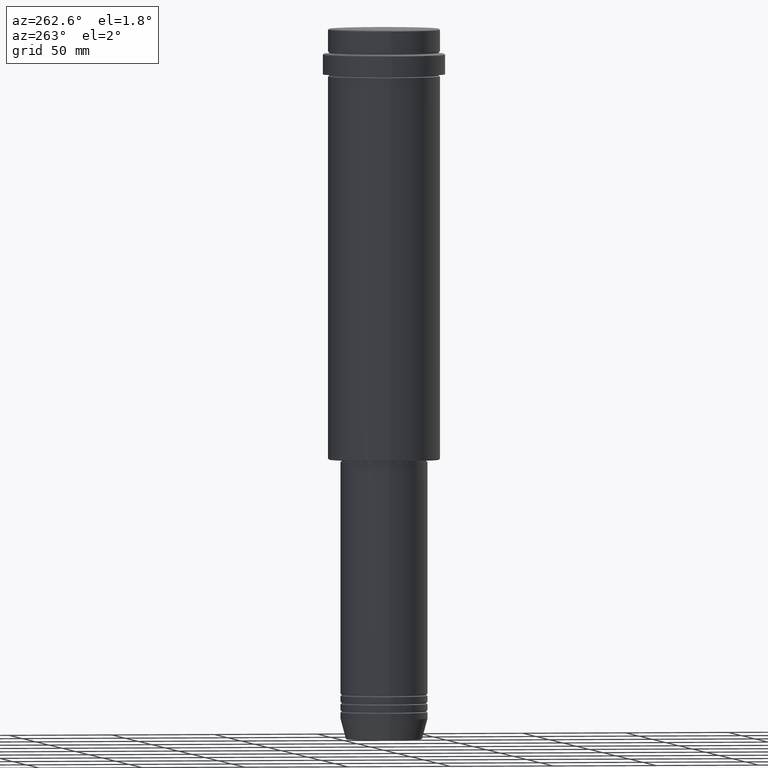
[diagram: clean part render]
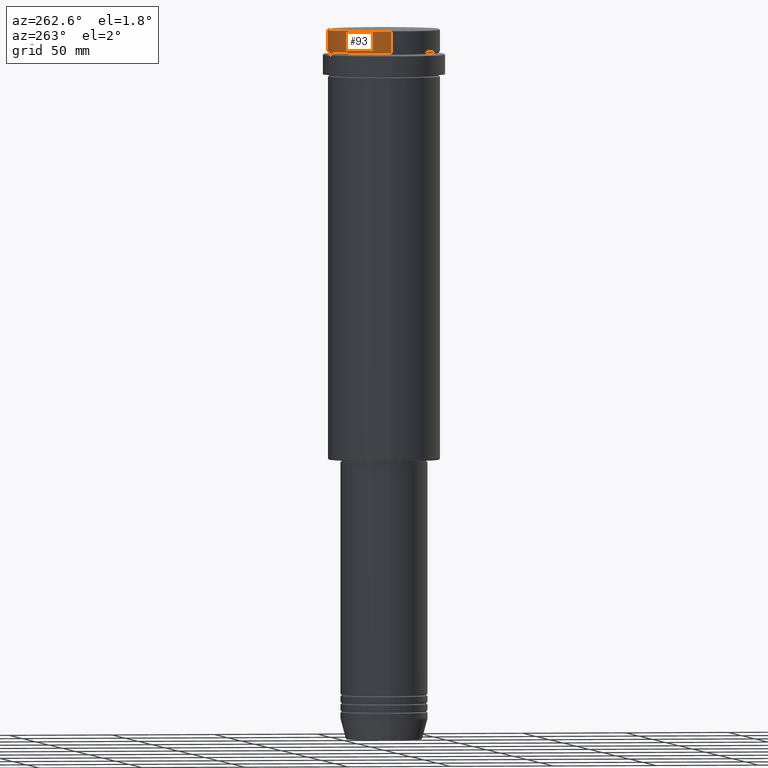
[diagram: same view with one face highlighted and labeled with its STEP entity id]
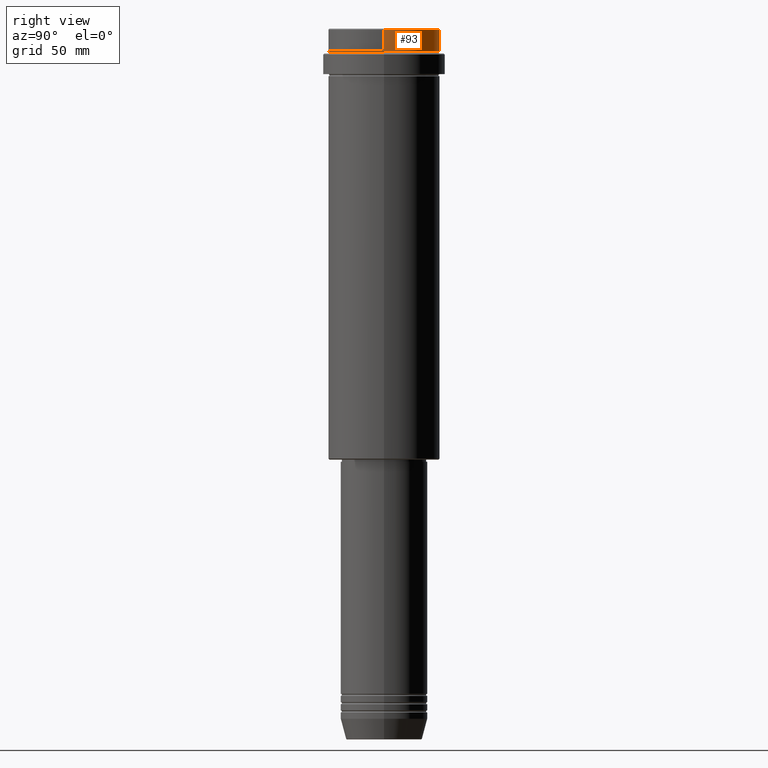
[diagram: same view with one face highlighted and labeled with its STEP entity id]
A machine part, auxiliary view. The second image highlights one B-rep face of the part: STEP entity #93.
A second angle (right view) of the same face is appended — the face is thin or edge-on in the first view.
In plain terms, the highlighted cylindrical surface (partial cylindrical patch) has radius 27 mm, axis along (-0, -0, 1).
Its self-contained STEP definition (entity closure, byte-faithful):
#8 = CARTESIAN_POINT ( 'NONE',  ( 27.00000000000000355, 0.000000000000000000, -0.4999999999999241163 ) ) ;
#28 = CARTESIAN_POINT ( 'NONE',  ( -27.00000000000000355, 3.306546357697854128E-15, -0.4999999999999241163 ) ) ;
#75 = DIRECTION ( 'NONE',  ( -0.000000000000000000, -0.000000000000000000, 1.000000000000000000 ) ) ;
#80 = CARTESIAN_POINT ( 'NONE',  ( 0.000000000000000000, 0.000000000000000000, 0.000000000000000000 ) ) ;
#90 = DIRECTION ( 'NONE',  ( 0.000000000000000000, 0.000000000000000000, -1.000000000000000000 ) ) ;
#93 = ADVANCED_FACE ( 'NONE', ( #409 ), #619, .T. ) ;
#95 = ORIENTED_EDGE ( 'NONE', *, *, #140, .T. ) ;
#102 = VERTEX_POINT ( 'NONE', #1374 ) ;
#112 = CARTESIAN_POINT ( 'NONE',  ( -27.00000000000000355, 3.306546357697854128E-15, 0.000000000000000000 ) ) ;
#119 = ORIENTED_EDGE ( 'NONE', *, *, #723, .T. ) ;
#125 = EDGE_CURVE ( 'NONE', #903, #1115, #895, .T. ) ;
#140 = EDGE_CURVE ( 'NONE', #102, #938, #1323, .T. ) ;
#251 = EDGE_CURVE ( 'NONE', #903, #102, #628, .T. ) ;
#322 = CARTESIAN_POINT ( 'NONE',  ( 0.000000000000000000, 0.000000000000000000, -11.00000000000000178 ) ) ;
#336 = VECTOR ( 'NONE', #1412, 1000.000000000000000 ) ;
#350 = DIRECTION ( 'NONE',  ( -0.000000000000000000, -0.000000000000000000, 1.000000000000000000 ) ) ;
#409 = FACE_OUTER_BOUND ( 'NONE', #601, .T. ) ;
#431 = ORIENTED_EDGE ( 'NONE', *, *, #125, .F. ) ;
#438 = CARTESIAN_POINT ( 'NONE',  ( 0.000000000000000000, 0.000000000000000000, -0.4999999999999241163 ) ) ;
#452 = VECTOR ( 'NONE', #350, 1000.000000000000000 ) ;
#504 = DIRECTION ( 'NONE',  ( 1.000000000000000000, 0.000000000000000000, 0.000000000000000000 ) ) ;
#535 = DIRECTION ( 'NONE',  ( 1.000000000000000000, 0.000000000000000000, 0.000000000000000000 ) ) ;
#583 = CIRCLE ( 'NONE', #1367, 27.00000000000000355 ) ;
#601 = EDGE_LOOP ( 'NONE', ( #1221, #95, #119, #431 ) ) ;
#619 = CYLINDRICAL_SURFACE ( 'NONE', #646, 27.00000000000000355 ) ;
#628 = CIRCLE ( 'NONE', #908, 27.00000000000000355 ) ;
#646 = AXIS2_PLACEMENT_3D ( 'NONE', #80, #75, #504 ) ;
#651 = DIRECTION ( 'NONE',  ( -0.000000000000000000, -0.000000000000000000, 1.000000000000000000 ) ) ;
#677 = CARTESIAN_POINT ( 'NONE',  ( 27.00000000000000355, 0.000000000000000000, -11.00000000000000178 ) ) ;
#723 = EDGE_CURVE ( 'NONE', #938, #1115, #583, .T. ) ;
#895 = LINE ( 'NONE', #986, #336 ) ;
#903 = VERTEX_POINT ( 'NONE', #677 ) ;
#908 = AXIS2_PLACEMENT_3D ( 'NONE', #322, #651, #1100 ) ;
#938 = VERTEX_POINT ( 'NONE', #28 ) ;
#986 = CARTESIAN_POINT ( 'NONE',  ( 27.00000000000000355, 0.000000000000000000, 0.000000000000000000 ) ) ;
#1100 = DIRECTION ( 'NONE',  ( 1.000000000000000000, 0.000000000000000000, 0.000000000000000000 ) ) ;
#1115 = VERTEX_POINT ( 'NONE', #8 ) ;
#1221 = ORIENTED_EDGE ( 'NONE', *, *, #251, .T. ) ;
#1323 = LINE ( 'NONE', #112, #452 ) ;
#1367 = AXIS2_PLACEMENT_3D ( 'NONE', #438, #90, #535 ) ;
#1374 = CARTESIAN_POINT ( 'NONE',  ( -27.00000000000000355, 3.306546357697854128E-15, -11.00000000000000178 ) ) ;
#1412 = DIRECTION ( 'NONE',  ( -0.000000000000000000, -0.000000000000000000, 1.000000000000000000 ) ) ;